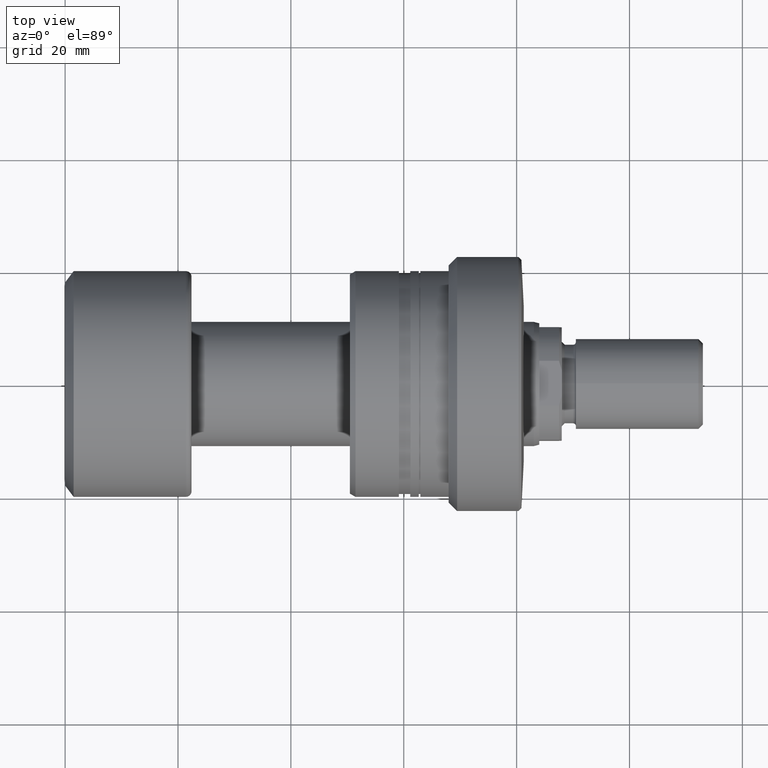
[diagram: clean part render]
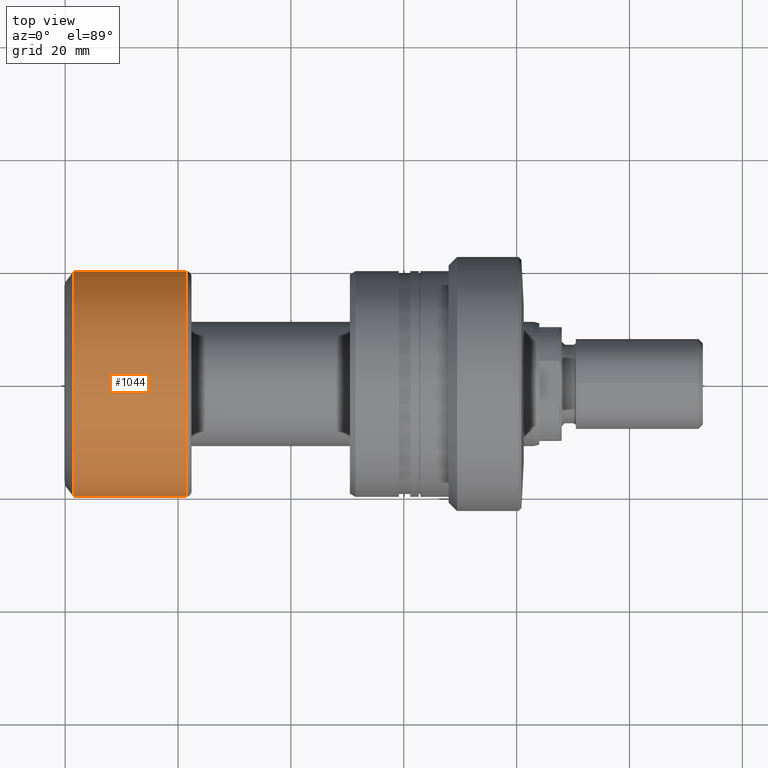
[diagram: same view with one face highlighted and labeled with its STEP entity id]
A machine part, top view. The second image highlights one B-rep face of the part: STEP entity #1044.
In plain terms, the highlighted cylindrical surface (partial cylindrical patch) has radius 20 mm, axis along (-1, -0, -0).
Its self-contained STEP definition (entity closure, byte-faithful):
#171 = CARTESIAN_POINT ( 'NONE',  ( 2.139084644138131786E-16, -20.00000000000000000, 0.000000000000000000 ) ) ;
#322 = CARTESIAN_POINT ( 'NONE',  ( 1.500000000000002442, 20.00000000000000000, 0.000000000000000000 ) ) ;
#385 = DIRECTION ( 'NONE',  ( -1.000000000000000000, -1.069542322069065801E-17, -0.000000000000000000 ) ) ;
#410 = DIRECTION ( 'NONE',  ( -1.000000000000000000, -1.069542322069065801E-17, -0.000000000000000000 ) ) ;
#419 = AXIS2_PLACEMENT_3D ( 'NONE', #1901, #2772, #1855 ) ;
#534 = VERTEX_POINT ( 'NONE', #2852 ) ;
#563 = ORIENTED_EDGE ( 'NONE', *, *, #576, .F. ) ;
#576 = EDGE_CURVE ( 'NONE', #534, #997, #2838, .T. ) ;
#637 = ORIENTED_EDGE ( 'NONE', *, *, #909, .T. ) ;
#663 = EDGE_CURVE ( 'NONE', #997, #1905, #2707, .T. ) ;
#773 = CARTESIAN_POINT ( 'NONE',  ( 1.500000000000002887, -20.00000000000000000, 2.449293598294706513E-15 ) ) ;
#828 = CARTESIAN_POINT ( 'NONE',  ( 1.500000000000002442, 1.604313483103601552E-17, 0.000000000000000000 ) ) ;
#833 = DIRECTION ( 'NONE',  ( -1.000000000000000000, -1.069542322069065801E-17, -0.000000000000000000 ) ) ;
#905 = LINE ( 'NONE', #1144, #2019 ) ;
#909 = EDGE_CURVE ( 'NONE', #534, #1529, #1217, .T. ) ;
#919 = DIRECTION ( 'NONE',  ( -1.000000000000000000, -1.069542322069065801E-17, -0.000000000000000000 ) ) ;
#997 = VERTEX_POINT ( 'NONE', #773 ) ;
#1029 = AXIS2_PLACEMENT_3D ( 'NONE', #828, #385, #1336 ) ;
#1044 = ADVANCED_FACE ( 'NONE', ( #1446 ), #2111, .T. ) ;
#1144 = CARTESIAN_POINT ( 'NONE',  ( -2.139084644138131786E-16, 20.00000000000000000, 2.449293598294706513E-15 ) ) ;
#1182 = EDGE_CURVE ( 'NONE', #1529, #1905, #905, .T. ) ;
#1217 = CIRCLE ( 'NONE', #2799, 20.00000000000000000 ) ;
#1304 = EDGE_LOOP ( 'NONE', ( #637, #1470, #1844, #563 ) ) ;
#1336 = DIRECTION ( 'NONE',  ( 1.084202172485504434E-17, -1.000000000000000000, 0.000000000000000000 ) ) ;
#1446 = FACE_OUTER_BOUND ( 'NONE', #1304, .T. ) ;
#1470 = ORIENTED_EDGE ( 'NONE', *, *, #1182, .T. ) ;
#1529 = VERTEX_POINT ( 'NONE', #2785 ) ;
#1844 = ORIENTED_EDGE ( 'NONE', *, *, #663, .F. ) ;
#1855 = DIRECTION ( 'NONE',  ( 1.069542322069065955E-17, -1.000000000000000000, 0.000000000000000000 ) ) ;
#1901 = CARTESIAN_POINT ( 'NONE',  ( 0.000000000000000000, 0.000000000000000000, 0.000000000000000000 ) ) ;
#1905 = VERTEX_POINT ( 'NONE', #322 ) ;
#1952 = DIRECTION ( 'NONE',  ( 0.000000000000000000, -1.000000000000000000, 0.000000000000000000 ) ) ;
#2019 = VECTOR ( 'NONE', #919, 1000.000000000000000 ) ;
#2111 = CYLINDRICAL_SURFACE ( 'NONE', #419, 20.00000000000000000 ) ;
#2331 = VECTOR ( 'NONE', #410, 1000.000000000000000 ) ;
#2707 = CIRCLE ( 'NONE', #1029, 20.00000000000000000 ) ;
#2772 = DIRECTION ( 'NONE',  ( -1.000000000000000000, -1.069542322069065801E-17, -0.000000000000000000 ) ) ;
#2785 = CARTESIAN_POINT ( 'NONE',  ( 21.40000000000000213, 20.00000000000000000, 2.449293598294706513E-15 ) ) ;
#2799 = AXIS2_PLACEMENT_3D ( 'NONE', #2855, #833, #1952 ) ;
#2838 = LINE ( 'NONE', #171, #2331 ) ;
#2852 = CARTESIAN_POINT ( 'NONE',  ( 21.40000000000000213, -20.00000000000000000, 0.000000000000000000 ) ) ;
#2855 = CARTESIAN_POINT ( 'NONE',  ( 21.40000000000000213, 2.288820569227801297E-16, 0.000000000000000000 ) ) ;